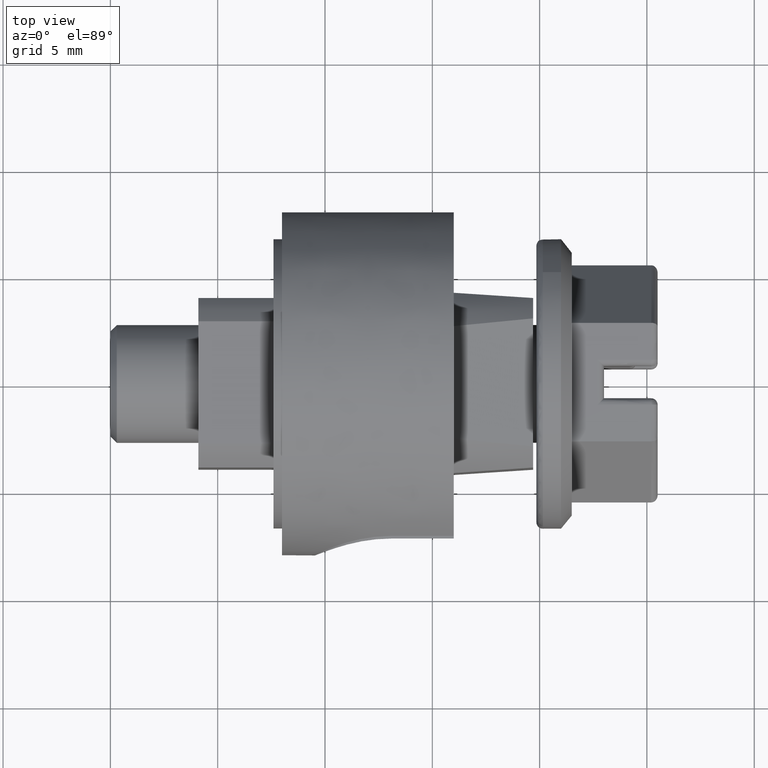
[diagram: clean part render]
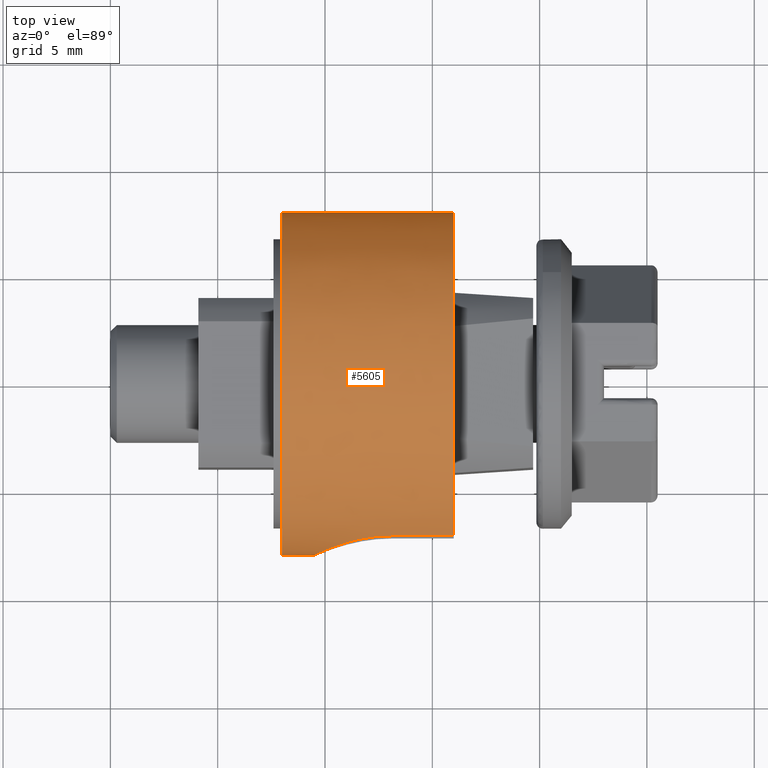
[diagram: same view with one face highlighted and labeled with its STEP entity id]
A machine part, top view. The second image highlights one B-rep face of the part: STEP entity #5605.
In plain terms, the highlighted face is a freeform B-spline surface patch.
Its self-contained STEP definition (entity closure, byte-faithful):
#5399=CARTESIAN_POINT('',(16.200001105602489,5.462639498820276,-5.844619387573715));
#5400=CARTESIAN_POINT('',(16.200001105602485,3.375206971716347,-7.795626051570331));
#5401=CARTESIAN_POINT('',(16.200001105602489,0.524108534046022,-7.982813809942839));
#5402=CARTESIAN_POINT('',(16.200001105602492,-7.458705275896816,-8.506922343988862));
#5403=CARTESIAN_POINT('',(16.200001105602489,-7.982813809942839,-0.524108534046022));
#5404=CARTESIAN_POINT('',(16.200001105602492,-8.506922343988862,7.458705275896816));
#5405=CARTESIAN_POINT('',(16.200001105602489,-0.524108534046022,7.982813809942839));
#5406=CARTESIAN_POINT('',(16.200001105602492,7.458705275896816,8.506922343988862));
#5407=CARTESIAN_POINT('',(16.200001105602489,7.982813809942839,0.524108534046022));
#5408=CARTESIAN_POINT('',(7.795000706386413,5.462639498820276,-5.844619387573715));
#5409=CARTESIAN_POINT('',(7.795000706386412,3.375206971716347,-7.795626051570331));
#5410=CARTESIAN_POINT('',(7.795000706386412,0.524108534046022,-7.982813809942839));
#5411=CARTESIAN_POINT('',(7.795000706386413,-7.458705275896816,-8.506922343988862));
#5412=CARTESIAN_POINT('',(7.795000706386412,-7.982813809942839,-0.524108534046022));
#5413=CARTESIAN_POINT('',(7.795000706386413,-8.506922343988862,7.458705275896816));
#5414=CARTESIAN_POINT('',(7.795000706386412,-0.524108534046022,7.982813809942839));
#5415=CARTESIAN_POINT('',(7.795000706386413,7.458705275896816,8.506922343988862));
#5416=CARTESIAN_POINT('',(7.795000706386412,7.982813809942839,0.524108534046022));
#5424=(BOUNDED_SURFACE()B_SPLINE_SURFACE(2,1,((#5399,#5408),(#5400,#5409),(#5401,#5410),(#5402,#5411),(#5403,#5412),(#5404,#5413),(#5405,#5414),(#5406,#5415),(#5407,#5416)),.UNSPECIFIED.,.F.,.F.,.U.)B_SPLINE_SURFACE_WITH_KNOTS((3,2,2,2,3),(2,2),(0.0,5.832127235224347,19.086961860734220,32.341796486244107,45.596631111753993),(0.0,8.405000399216078),.UNSPECIFIED.)GEOMETRIC_REPRESENTATION_ITEM()RATIONAL_B_SPLINE_SURFACE(((0.855662221768731,0.855662221768731),(0.871126983722081,0.871126983722081),(1.0,1.0),(0.707106781186548,0.707106781186548),(1.0,1.0),(0.707106781186548,0.707106781186548),(1.0,1.0),(0.707106781186548,0.707106781186548),(1.0,1.0)))REPRESENTATION_ITEM('')SURFACE());
#5425=CARTESIAN_POINT('',(8.000000716123399,5.462639328795140,-5.844619546486713));
#5426=VERTEX_POINT('',#5425);
#5427=CARTESIAN_POINT('',(8.000000716123390,0.0,-8.000000379979619));
#5428=VERTEX_POINT('',#5427);
#5429=CARTESIAN_POINT('',(8.000000716123399,5.462639328795140,-5.844619546486713));
#5430=CARTESIAN_POINT('',(8.000000716123390,3.156541319035711,-8.000000379979621));
#5431=CARTESIAN_POINT('',(8.000000716123390,0.0,-8.000000379979619));
#5439=(BOUNDED_CURVE()B_SPLINE_CURVE(2,(#5429,#5430,#5431),.UNSPECIFIED.,.F.,.U.)B_SPLINE_CURVE_WITH_KNOTS((3,3),(0.880095839733137,1.0),.UNSPECIFIED.)CURVE()GEOMETRIC_REPRESENTATION_ITEM()RATIONAL_B_SPLINE_CURVE((0.853796773916421,0.859523538201257,1.0))REPRESENTATION_ITEM(''));
#5440=EDGE_CURVE('',#5426,#5428,#5439,.T.);
#5441=ORIENTED_EDGE('',*,*,#5440,.F.);
#5442=CARTESIAN_POINT('',(16.000001096102999,5.462638049344776,-5.844620742316884));
#5443=VERTEX_POINT('',#5442);
#5444=CARTESIAN_POINT('',(16.000001096102999,5.462638049344776,-5.844620742316884));
#5445=CARTESIAN_POINT('',(8.000000716123399,5.462639328795140,-5.844619546486713));
#5446=QUASI_UNIFORM_CURVE('',1,(#5444,#5445),.UNSPECIFIED.,.F.,.U.);
#5447=EDGE_CURVE('',#5443,#5426,#5446,.T.);
#5448=ORIENTED_EDGE('',*,*,#5447,.F.);
#5449=CARTESIAN_POINT('',(16.000001096102999,-7.144227209851530,-3.600003285233370));
#5450=VERTEX_POINT('',#5449);
#5451=CARTESIAN_POINT('',(16.000001096103002,5.462638049344776,-5.844620742316884));
#5452=CARTESIAN_POINT('',(16.000001096102999,3.913330771951971,-7.292671053321277));
#5453=CARTESIAN_POINT('',(16.000001096102999,1.850161917297234,-7.783116789529569));
#5454=CARTESIAN_POINT('',(16.000001096103002,-4.299679300865583,-9.245024959091730));
#5455=CARTESIAN_POINT('',(16.000001096102999,-7.144227209851529,-3.600003285233374));
#5463=(BOUNDED_CURVE()B_SPLINE_CURVE(2,(#5451,#5452,#5453,#5454,#5455),.UNSPECIFIED.,.F.,.U.)B_SPLINE_CURVE_WITH_KNOTS((3,2,3),(0.652120590839826,0.750000000000000,1.0),.UNSPECIFIED.)CURVE()GEOMETRIC_REPRESENTATION_ITEM()RATIONAL_B_SPLINE_CURVE((0.897381296381285,0.915676517679018,1.0,0.784624051563821,1.0))REPRESENTATION_ITEM(''));
#5464=EDGE_CURVE('',#5443,#5450,#5463,.T.);
#5465=ORIENTED_EDGE('',*,*,#5464,.T.);
#5466=CARTESIAN_POINT('',(13.100000958360400,-7.144227209851530,-3.600003285233370));
#5467=VERTEX_POINT('',#5466);
#5468=CARTESIAN_POINT('',(16.000001096102999,-7.144227209851530,-3.600003285233370));
#5469=CARTESIAN_POINT('',(13.100000958360400,-7.144227209851530,-3.600003285233370));
#5470=QUASI_UNIFORM_CURVE('',1,(#5468,#5469),.UNSPECIFIED.,.F.,.U.);
#5471=EDGE_CURVE('',#5450,#5467,#5470,.T.);
#5472=ORIENTED_EDGE('',*,*,#5471,.T.);
#5473=CARTESIAN_POINT('',(13.100000958354940,-7.144233516397451,3.599990769829465));
#5474=VERTEX_POINT('',#5473);
#5475=CARTESIAN_POINT('',(13.100000958354940,-7.144233516397451,3.599990769829465));
#5476=CARTESIAN_POINT('',(12.858696780065941,-7.144233410224096,3.599990980532020));
#5477=CARTESIAN_POINT('',(12.622180604389730,-7.156469495281318,3.575983167065913));
#5478=CARTESIAN_POINT('',(12.274088871586960,-7.190887669210369,3.505968753506155));
#5479=CARTESIAN_POINT('',(12.159179154707530,-7.205035666259728,3.476917992283334));
#5480=CARTESIAN_POINT('',(11.988495752719050,-7.229961218933956,3.424622570700474));
#5481=CARTESIAN_POINT('',(11.931834532035360,-7.238898942067561,3.405707369582061));
#5482=CARTESIAN_POINT('',(11.820367418103951,-7.257720433174559,3.365411519349878));
#5483=CARTESIAN_POINT('',(11.765396245408470,-7.267626600940020,3.343984315122787));
#5484=CARTESIAN_POINT('',(11.494223722299241,-7.319373607622109,3.230591116898815));
#5485=CARTESIAN_POINT('',(11.288958221448571,-7.367831737084744,3.120063716253030));
#5486=CARTESIAN_POINT('',(11.046114093474030,-7.433459233818896,2.957181665042583));
#5487=CARTESIAN_POINT('',(10.998128321855720,-7.446871401335313,2.923271870290443));
#5488=CARTESIAN_POINT('',(10.904127531465191,-7.473946997981495,2.853336357147637));
#5489=CARTESIAN_POINT('',(10.858175929488061,-7.487589515383248,2.817368035398008));
#5490=CARTESIAN_POINT('',(10.723376559746360,-7.528682787637227,2.706502324985364));
#5491=CARTESIAN_POINT('',(10.637575553029420,-7.556297777236177,2.628652263857357));
#5492=CARTESIAN_POINT('',(10.473843865658090,-7.611228233376113,2.465086935993364));
#5493=CARTESIAN_POINT('',(10.395913562331691,-7.638545267774327,2.379371812301490));
#5494=CARTESIAN_POINT('',(10.284932788635810,-7.678766691515058,2.244714383677253));
#5495=CARTESIAN_POINT('',(10.248927078118300,-7.692048230793249,2.198812405707940));
#5496=CARTESIAN_POINT('',(10.178919568628761,-7.718270439965173,2.104918857320763));
#5497=CARTESIAN_POINT('',(10.144843826408071,-7.731240300373378,2.056808321107943));
#5498=CARTESIAN_POINT('',(9.981197246749082,-7.794381269240449,1.813318026421086));
#5499=CARTESIAN_POINT('',(9.870575179175518,-7.839800212667397,1.608010647395874));
#5500=CARTESIAN_POINT('',(9.734672605327877,-7.897073484373376,1.283852151274443));
#5501=CARTESIAN_POINT('',(9.694416451557210,-7.914356101899500,1.173081273362046));
#5502=CARTESIAN_POINT('',(9.641924426880220,-7.937131916949485,1.002611359448289));
#5503=CARTESIAN_POINT('',(9.625699783231855,-7.944218711387886,0.944877989737285));
#5504=CARTESIAN_POINT('',(9.596240155546534,-7.957146499003863,0.828990315532082));
#5505=CARTESIAN_POINT('',(9.583002160676854,-7.962988395663027,0.770873820702206));
#5506=CARTESIAN_POINT('',(9.524150169974240,-7.989051127351200,0.479438296328654));
#5507=CARTESIAN_POINT('',(9.500334084103539,-7.999850587228912,0.243582037016192));
#5508=CARTESIAN_POINT('',(9.499921762994905,-8.000035898117915,-0.054682540089627));
#5509=CARTESIAN_POINT('',(9.501320747424328,-7.999405972846069,-0.114509048385206));
#5510=CARTESIAN_POINT('',(9.507144843537281,-7.996787495883477,-0.234516494620599));
#5511=CARTESIAN_POINT('',(9.511588305201313,-7.994790725015327,-0.294782135085194));
#5512=CARTESIAN_POINT('',(9.529303989382624,-7.986849471987895,-0.473833566361053));
#5513=CARTESIAN_POINT('',(9.546965238843898,-7.978948785082830,-0.591610467862215));
#5514=CARTESIAN_POINT('',(9.593590826623952,-7.958295689786312,-0.824109443331154));
#5515=CARTESIAN_POINT('',(9.622556111412321,-7.945542476956470,-0.938831221924887));
#5516=CARTESIAN_POINT('',(9.674449313964116,-7.923014156151216,-1.108653945231832));
#5517=CARTESIAN_POINT('',(9.693157253610982,-7.914938066395394,-1.164884233801492));
#5518=CARTESIAN_POINT('',(9.733420534721519,-7.897691002453057,-1.276587914248825));
#5519=CARTESIAN_POINT('',(9.755042452111056,-7.888492078049552,-1.332213029331722));
#5520=CARTESIAN_POINT('',(9.869375738132058,-7.840283644969638,-1.606064228746087));
#5521=CARTESIAN_POINT('',(9.980490233323703,-7.794675219075611,-1.811927460134068));
#5522=CARTESIAN_POINT('',(10.175415170784181,-7.719429523227136,-2.102480230251808));
#5523=CARTESIAN_POINT('',(10.245166655765489,-7.693193707796379,-2.196299223338395));
#5524=CARTESIAN_POINT('',(10.394340772651621,-7.639093286452138,-2.377648726157094));
#5525=CARTESIAN_POINT('',(10.472682716470450,-7.611623500004188,-2.463873991726250));
#5526=CARTESIAN_POINT('',(10.718730557073821,-7.529047181199320,-2.709867103002761));
#5527=CARTESIAN_POINT('',(10.897329477396690,-7.473742893405214,-2.857089048028406));
#5528=CARTESIAN_POINT('',(11.139925761490501,-7.408082779563278,-3.020190746856975));
#5529=CARTESIAN_POINT('',(11.189535446486071,-7.395098439988591,-3.051820718144644));
#5530=CARTESIAN_POINT('',(11.290248890652750,-7.369722171433502,-3.112601122646475));
#5531=CARTESIAN_POINT('',(11.341191204693191,-7.357368914059505,-3.141662387415272));
#5532=CARTESIAN_POINT('',(11.495769705266930,-7.321440355596975,-3.224929837483237));
#5533=CARTESIAN_POINT('',(11.601153131017760,-7.298995484139417,-3.275230243467943));
#5534=CARTESIAN_POINT('',(11.924415321659190,-7.237211603638012,-3.410663112358647));
#5535=CARTESIAN_POINT('',(12.149434331218609,-7.203380468296776,-3.480537663521542));
#5536=CARTESIAN_POINT('',(12.620239894031769,-7.156485569245361,-3.575967966217596));
#5537=CARTESIAN_POINT('',(12.858597923285499,-7.144227103634038,-3.600003496022591));
#5538=CARTESIAN_POINT('',(13.100000958360400,-7.144227209851540,-3.600003285233350));
#5539=B_SPLINE_CURVE_WITH_KNOTS('',3,(#5475,#5476,#5477,#5478,#5479,#5480,#5481,#5482,#5483,#5484,#5485,#5486,#5487,#5488,#5489,#5490,#5491,#5492,#5493,#5494,#5495,#5496,#5497,#5498,#5499,#5500,#5501,#5502,#5503,#5504,#5505,#5506,#5507,#5508,#5509,#5510,#5511,#5512,#5513,#5514,#5515,#5516,#5517,#5518,#5519,#5520,#5521,#5522,#5523,#5524,#5525,#5526,#5527,#5528,#5529,#5530,#5531,#5532,#5533,#5534,#5535,#5536,#5537,#5538),.UNSPECIFIED.,.F.,.U.,(4,2,2,2,2,2,2,2,2,2,2,2,2,2,2,2,2,2,2,2,2,2,2,2,2,2,2,2,2,2,2,4),(0.0,0.062499999999999,0.093749999999998,0.109374999999998,0.124999999999998,0.187499999999997,0.203124999999997,0.218749999999997,0.249999999999997,0.281249999999997,0.296874999999997,0.312499999999997,0.374999999999998,0.406249999999998,0.421874999999998,0.437499999999998,0.499999999999998,0.515624999999998,0.531249999999998,0.562499999999999,0.593749999999999,0.609374999999999,0.624999999999999,0.687499999999999,0.718749999999999,0.749999999999999,0.812499999999999,0.828125000000000,0.843750000000000,0.875000000000000,0.937500000000000,1.0),.UNSPECIFIED.);
#5540=EDGE_CURVE('',#5474,#5467,#5539,.T.);
#5541=ORIENTED_EDGE('',*,*,#5540,.F.);
#5542=CARTESIAN_POINT('',(16.000001096102999,-7.144230348405500,3.599997056748165));
#5543=VERTEX_POINT('',#5542);
#5544=CARTESIAN_POINT('',(13.100000958354940,-7.144233516397451,3.599990769829465));
#5545=CARTESIAN_POINT('',(16.000001096102999,-7.144230348405500,3.599997056748165));
#5546=QUASI_UNIFORM_CURVE('',1,(#5544,#5545),.UNSPECIFIED.,.F.,.U.);
#5547=EDGE_CURVE('',#5474,#5543,#5546,.T.);
#5548=ORIENTED_EDGE('',*,*,#5547,.T.);
#5549=CARTESIAN_POINT('',(16.000001096102999,7.982814031143709,0.524105164864598));
#5550=VERTEX_POINT('',#5549);
#5551=CARTESIAN_POINT('',(16.000001096102999,-7.144230348405522,3.599997056748181));
#5552=CARTESIAN_POINT('',(16.000001096103002,-4.299687360866344,9.245021210539607));
#5553=CARTESIAN_POINT('',(16.000001096102999,1.850155131815666,7.783118402535722));
#5554=CARTESIAN_POINT('',(16.000001096102995,7.595902787283778,6.417274538793556));
#5555=CARTESIAN_POINT('',(16.000001096102999,7.982814031143709,0.524105164864598));
#5563=(BOUNDED_CURVE()B_SPLINE_CURVE(2,(#5551,#5552,#5553,#5554,#5555),.UNSPECIFIED.,.F.,.U.)B_SPLINE_CURVE_WITH_KNOTS((3,2,3),(0.0,0.250000000000000,0.486925925487701),.UNSPECIFIED.)CURVE()GEOMETRIC_REPRESENTATION_ITEM()RATIONAL_B_SPLINE_CURVE((1.0,0.784624051563821,1.0,0.795887416355868,0.978651334980310))REPRESENTATION_ITEM(''));
#5564=EDGE_CURVE('',#5543,#5550,#5563,.T.);
#5565=ORIENTED_EDGE('',*,*,#5564,.T.);
#5566=CARTESIAN_POINT('',(8.000000716123399,7.982814253795967,0.524101773532627));
#5567=VERTEX_POINT('',#5566);
#5568=CARTESIAN_POINT('',(16.000001096102999,7.982814031143709,0.524105164864598));
#5569=CARTESIAN_POINT('',(8.000000716123399,7.982814253795967,0.524101773532627));
#5570=QUASI_UNIFORM_CURVE('',1,(#5568,#5569),.UNSPECIFIED.,.F.,.U.);
#5571=EDGE_CURVE('',#5550,#5567,#5570,.T.);
#5572=ORIENTED_EDGE('',*,*,#5571,.T.);
#5573=CARTESIAN_POINT('',(8.000000716123390,0.0,8.000000379979619));
#5574=VERTEX_POINT('',#5573);
#5575=CARTESIAN_POINT('',(8.000000716123390,0.0,8.000000379979619));
#5576=CARTESIAN_POINT('',(8.000000716123390,7.491993398669236,8.000000379979619));
#5577=CARTESIAN_POINT('',(8.000000716123401,7.982814253795967,0.524101773532627));
#5585=(BOUNDED_CURVE()B_SPLINE_CURVE(2,(#5575,#5576,#5577),.UNSPECIFIED.,.F.,.U.)B_SPLINE_CURVE_WITH_KNOTS((3,3),(0.500000000000000,0.738561787089451),.UNSPECIFIED.)CURVE()GEOMETRIC_REPRESENTATION_ITEM()RATIONAL_B_SPLINE_CURVE((1.0,0.720507481173924,0.974424840502094))REPRESENTATION_ITEM(''));
#5586=EDGE_CURVE('',#5574,#5567,#5585,.T.);
#5587=ORIENTED_EDGE('',*,*,#5586,.F.);
#5588=CARTESIAN_POINT('',(8.000000716123390,0.0,-8.000000379979619));
#5589=CARTESIAN_POINT('',(8.000000716123392,-8.000000379979619,-8.000000379979619));
#5590=CARTESIAN_POINT('',(8.000000716123390,-8.000000379979619,0.0));
#5591=CARTESIAN_POINT('',(8.000000716123392,-8.000000379979619,8.000000379979619));
#5592=CARTESIAN_POINT('',(8.000000716123390,0.0,8.000000379979619));
#5600=(BOUNDED_CURVE()B_SPLINE_CURVE(2,(#5588,#5589,#5590,#5591,#5592),.UNSPECIFIED.,.F.,.U.)B_SPLINE_CURVE_WITH_KNOTS((3,2,3),(0.0,0.250000000000000,0.500000000000000),.UNSPECIFIED.)CURVE()GEOMETRIC_REPRESENTATION_ITEM()RATIONAL_B_SPLINE_CURVE((1.0,0.707106781186548,1.0,0.707106781186548,1.0))REPRESENTATION_ITEM(''));
#5601=EDGE_CURVE('',#5428,#5574,#5600,.T.);
#5602=ORIENTED_EDGE('',*,*,#5601,.F.);
#5603=EDGE_LOOP('',(#5441,#5448,#5465,#5472,#5541,#5548,#5565,#5572,#5587,#5602));
#5604=FACE_OUTER_BOUND('',#5603,.T.);
#5605=ADVANCED_FACE('',(#5604),#5424,.T.);